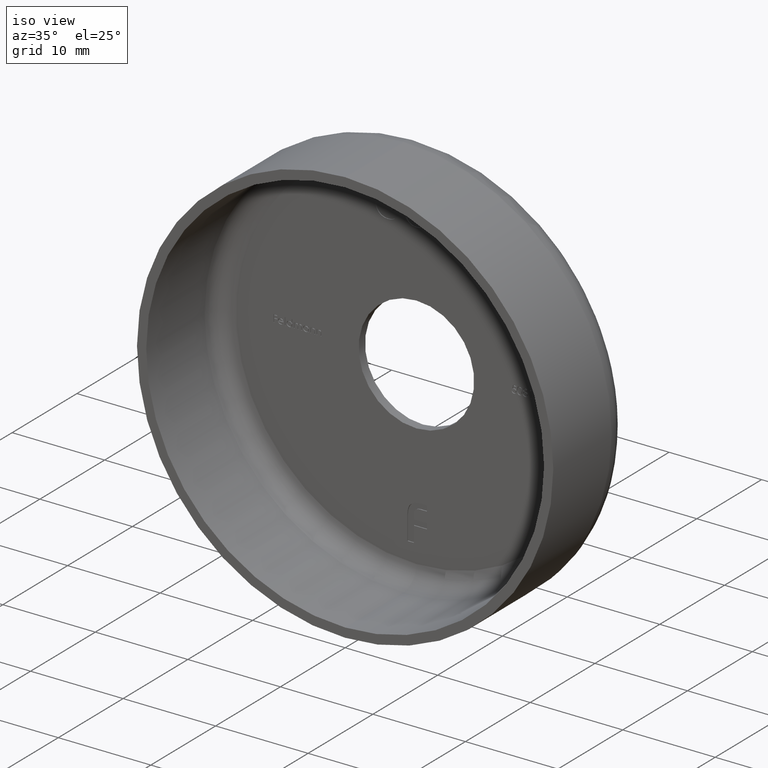
[diagram: clean part render]
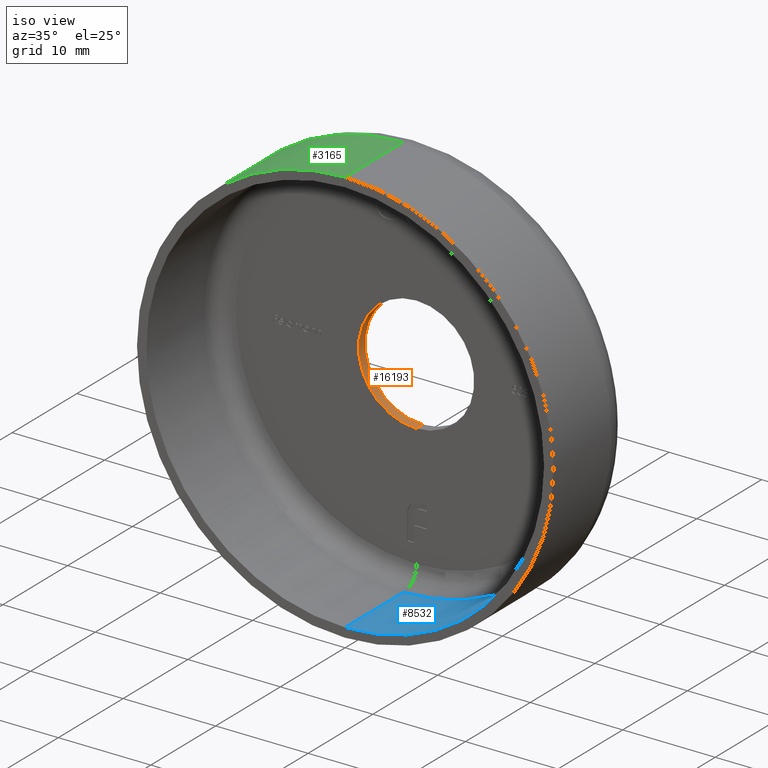
[diagram: same view with three faces highlighted in distinct colors, each labeled with its STEP entity id]
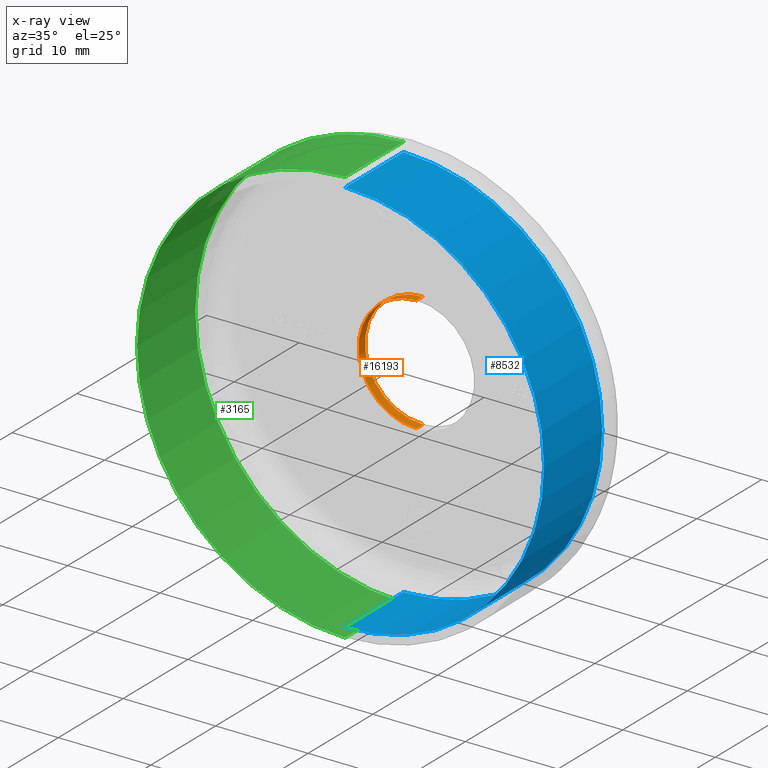
[diagram: x-ray of the same camera — body ghosted, the three highlighted faces saturated]
A machine part, iso view with three faces highlighted in distinct colors.
The next image is the same camera in x-ray (body ghosted, the three faces saturated) — at least one of them is partly hidden behind the body in this view.
Their STEP definitions:

[orange] entity #16193 — the highlighted cylindrical surface (partial cylindrical patch) has radius 6.25 mm, axis along (-0, -1, -0).
#90 = AXIS2_PLACEMENT_3D ( 'NONE', #16003, #14697, #128 ) ;
#128 = DIRECTION ( 'NONE',  ( 0.000000000000000000, 0.000000000000000000, -1.000000000000000000 ) ) ;
#165 = DIRECTION ( 'NONE',  ( -0.000000000000000000, -1.000000000000000000, -0.000000000000000000 ) ) ;
#815 = CARTESIAN_POINT ( 'NONE',  ( 7.654042494670959579E-16, 0.000000000000000000, 6.250000000000001776 ) ) ;
#1597 = ORIENTED_EDGE ( 'NONE', *, *, #9231, .F. ) ;
#1646 = VECTOR ( 'NONE', #165, 1000.000000000000000 ) ;
#1786 = CARTESIAN_POINT ( 'NONE',  ( 0.000000000000000000, 12.00000000000000000, -6.250000000000001776 ) ) ;
#2172 = CIRCLE ( 'NONE', #90, 6.250000000000001776 ) ;
#3110 = LINE ( 'NONE', #815, #10971 ) ;
#3196 = CARTESIAN_POINT ( 'NONE',  ( 7.654042494670959579E-16, 11.00000000000000000, 6.250000000000001776 ) ) ;
#3699 = CYLINDRICAL_SURFACE ( 'NONE', #14631, 6.250000000000001776 ) ;
#4363 = CARTESIAN_POINT ( 'NONE',  ( 7.654042494670959579E-16, 12.00000000000000000, 6.250000000000001776 ) ) ;
#4702 = ORIENTED_EDGE ( 'NONE', *, *, #16772, .F. ) ;
#4940 = CARTESIAN_POINT ( 'NONE',  ( 0.000000000000000000, 12.00000000000000000, 0.000000000000000000 ) ) ;
#5469 = VERTEX_POINT ( 'NONE', #3196 ) ;
#6570 = EDGE_LOOP ( 'NONE', ( #1597, #6889, #8325, #4702 ) ) ;
#6889 = ORIENTED_EDGE ( 'NONE', *, *, #14436, .T. ) ;
#7374 = DIRECTION ( 'NONE',  ( 0.000000000000000000, 0.000000000000000000, -1.000000000000000000 ) ) ;
#7626 = CARTESIAN_POINT ( 'NONE',  ( 0.000000000000000000, 11.00000000000000000, -6.250000000000001776 ) ) ;
#7643 = LINE ( 'NONE', #13428, #1646 ) ;
#8325 = ORIENTED_EDGE ( 'NONE', *, *, #9322, .T. ) ;
#8468 = DIRECTION ( 'NONE',  ( 0.000000000000000000, 0.000000000000000000, -1.000000000000000000 ) ) ;
#8749 = DIRECTION ( 'NONE',  ( -0.000000000000000000, -1.000000000000000000, -0.000000000000000000 ) ) ;
#8982 = VERTEX_POINT ( 'NONE', #4363 ) ;
#9231 = EDGE_CURVE ( 'NONE', #8982, #11508, #16842, .T. ) ;
#9322 = EDGE_CURVE ( 'NONE', #5469, #11698, #2172, .T. ) ;
#10971 = VECTOR ( 'NONE', #12852, 1000.000000000000000 ) ;
#11508 = VERTEX_POINT ( 'NONE', #1786 ) ;
#11698 = VERTEX_POINT ( 'NONE', #7626 ) ;
#12852 = DIRECTION ( 'NONE',  ( -0.000000000000000000, -1.000000000000000000, -0.000000000000000000 ) ) ;
#13428 = CARTESIAN_POINT ( 'NONE',  ( 0.000000000000000000, 0.000000000000000000, -6.250000000000001776 ) ) ;
#14436 = EDGE_CURVE ( 'NONE', #8982, #5469, #3110, .T. ) ;
#14631 = AXIS2_PLACEMENT_3D ( 'NONE', #15180, #16376, #8468 ) ;
#14672 = FACE_OUTER_BOUND ( 'NONE', #6570, .T. ) ;
#14697 = DIRECTION ( 'NONE',  ( -0.000000000000000000, -1.000000000000000000, -0.000000000000000000 ) ) ;
#14935 = AXIS2_PLACEMENT_3D ( 'NONE', #4940, #8749, #7374 ) ;
#15180 = CARTESIAN_POINT ( 'NONE',  ( 0.000000000000000000, 0.000000000000000000, 0.000000000000000000 ) ) ;
#16003 = CARTESIAN_POINT ( 'NONE',  ( 0.000000000000000000, 11.00000000000000000, 0.000000000000000000 ) ) ;
#16193 = ADVANCED_FACE ( 'NONE', ( #14672 ), #3699, .F. ) ;
#16376 = DIRECTION ( 'NONE',  ( -0.000000000000000000, -1.000000000000000000, -0.000000000000000000 ) ) ;
#16772 = EDGE_CURVE ( 'NONE', #11508, #11698, #7643, .T. ) ;
#16842 = CIRCLE ( 'NONE', #14935, 6.250000000000001776 ) ;

[blue] entity #8532 — the highlighted cylindrical surface (partial cylindrical patch) has radius 21.5 mm, axis along (-0, -1, -0).
#1 = CARTESIAN_POINT ( 'NONE',  ( 0.000000000000000000, -1.224646799147353207E-16, 0.000000000000000000 ) ) ;
#476 = VERTEX_POINT ( 'NONE', #17009 ) ;
#1751 = CIRCLE ( 'NONE', #3639, 21.50000000000000355 ) ;
#2113 = VERTEX_POINT ( 'NONE', #15623 ) ;
#2189 = CYLINDRICAL_SURFACE ( 'NONE', #12966, 21.50000000000000355 ) ;
#2784 = ORIENTED_EDGE ( 'NONE', *, *, #11120, .T. ) ;
#2820 = CARTESIAN_POINT ( 'NONE',  ( 0.000000000000000000, -1.224646799147353207E-16, -21.50000000000000355 ) ) ;
#3639 = AXIS2_PLACEMENT_3D ( 'NONE', #16001, #16111, #5337 ) ;
#3930 = VERTEX_POINT ( 'NONE', #2820 ) ;
#4115 = DIRECTION ( 'NONE',  ( -0.000000000000000000, -1.000000000000000000, -0.000000000000000000 ) ) ;
#4499 = DIRECTION ( 'NONE',  ( 0.000000000000000000, 0.000000000000000000, -1.000000000000000000 ) ) ;
#4610 = VERTEX_POINT ( 'NONE', #8434 ) ;
#5243 = EDGE_LOOP ( 'NONE', ( #9937, #9426, #2784, #13165 ) ) ;
#5337 = DIRECTION ( 'NONE',  ( 0.000000000000000000, 0.000000000000000000, -1.000000000000000000 ) ) ;
#5580 = CARTESIAN_POINT ( 'NONE',  ( 0.000000000000000000, 0.000000000000000000, -21.50000000000000355 ) ) ;
#5691 = VECTOR ( 'NONE', #8100, 1000.000000000000000 ) ;
#5868 = AXIS2_PLACEMENT_3D ( 'NONE', #1, #4115, #8050 ) ;
#7119 = LINE ( 'NONE', #5580, #5691 ) ;
#7469 = VECTOR ( 'NONE', #9978, 1000.000000000000000 ) ;
#7685 = LINE ( 'NONE', #14212, #7469 ) ;
#7882 = EDGE_CURVE ( 'NONE', #3930, #476, #8814, .T. ) ;
#8050 = DIRECTION ( 'NONE',  ( 0.000000000000000000, 0.000000000000000000, -1.000000000000000000 ) ) ;
#8100 = DIRECTION ( 'NONE',  ( -0.000000000000000000, -1.000000000000000000, -0.000000000000000000 ) ) ;
#8434 = CARTESIAN_POINT ( 'NONE',  ( 0.000000000000000000, 9.000000000000001776, -21.50000000000000355 ) ) ;
#8532 = ADVANCED_FACE ( 'NONE', ( #14176 ), #2189, .F. ) ;
#8814 = CIRCLE ( 'NONE', #5868, 21.50000000000000355 ) ;
#9426 = ORIENTED_EDGE ( 'NONE', *, *, #11126, .F. ) ;
#9937 = ORIENTED_EDGE ( 'NONE', *, *, #14535, .F. ) ;
#9978 = DIRECTION ( 'NONE',  ( -0.000000000000000000, -1.000000000000000000, -0.000000000000000000 ) ) ;
#11092 = CARTESIAN_POINT ( 'NONE',  ( 0.000000000000000000, 0.000000000000000000, 0.000000000000000000 ) ) ;
#11120 = EDGE_CURVE ( 'NONE', #4610, #3930, #7119, .T. ) ;
#11126 = EDGE_CURVE ( 'NONE', #4610, #2113, #1751, .T. ) ;
#12437 = DIRECTION ( 'NONE',  ( -0.000000000000000000, -1.000000000000000000, -0.000000000000000000 ) ) ;
#12966 = AXIS2_PLACEMENT_3D ( 'NONE', #11092, #12437, #4499 ) ;
#13165 = ORIENTED_EDGE ( 'NONE', *, *, #7882, .T. ) ;
#14176 = FACE_OUTER_BOUND ( 'NONE', #5243, .T. ) ;
#14212 = CARTESIAN_POINT ( 'NONE',  ( 2.632990618166810024E-15, 0.000000000000000000, 21.50000000000000355 ) ) ;
#14535 = EDGE_CURVE ( 'NONE', #2113, #476, #7685, .T. ) ;
#15623 = CARTESIAN_POINT ( 'NONE',  ( 2.632990618166810024E-15, 9.000000000000001776, 21.50000000000000355 ) ) ;
#16001 = CARTESIAN_POINT ( 'NONE',  ( 0.000000000000000000, 9.000000000000001776, 0.000000000000000000 ) ) ;
#16111 = DIRECTION ( 'NONE',  ( -0.000000000000000000, -1.000000000000000000, -0.000000000000000000 ) ) ;
#17009 = CARTESIAN_POINT ( 'NONE',  ( 2.632990618166810024E-15, -1.224646799147353207E-16, 21.50000000000000355 ) ) ;

[green] entity #3165 — the highlighted cylindrical surface (partial cylindrical patch) has radius 22.5 mm, axis along (-0, -1, -0).
#600 = DIRECTION ( 'NONE',  ( -0.000000000000000000, -1.000000000000000000, -0.000000000000000000 ) ) ;
#1296 = CARTESIAN_POINT ( 'NONE',  ( 2.755455298081545172E-15, 0.000000000000000000, 22.50000000000000355 ) ) ;
#1670 = VERTEX_POINT ( 'NONE', #10815 ) ;
#1828 = DIRECTION ( 'NONE',  ( 0.000000000000000000, 0.000000000000000000, -1.000000000000000000 ) ) ;
#3165 = ADVANCED_FACE ( 'NONE', ( #15308 ), #9497, .T. ) ;
#3205 = CARTESIAN_POINT ( 'NONE',  ( 0.000000000000000000, 0.000000000000000000, -22.50000000000000355 ) ) ;
#3208 = CIRCLE ( 'NONE', #11960, 22.50000000000000000 ) ;
#3771 = AXIS2_PLACEMENT_3D ( 'NONE', #15059, #11018, #11242 ) ;
#3813 = CARTESIAN_POINT ( 'NONE',  ( 0.000000000000000000, 0.000000000000000000, 0.000000000000000000 ) ) ;
#3902 = CARTESIAN_POINT ( 'NONE',  ( 0.000000000000000000, 0.000000000000000000, -22.50000000000000711 ) ) ;
#4410 = AXIS2_PLACEMENT_3D ( 'NONE', #3813, #7978, #9064 ) ;
#4879 = VERTEX_POINT ( 'NONE', #3902 ) ;
#6213 = ORIENTED_EDGE ( 'NONE', *, *, #8207, .F. ) ;
#6302 = EDGE_LOOP ( 'NONE', ( #16993, #9116, #7845, #6213 ) ) ;
#7025 = EDGE_CURVE ( 'NONE', #12911, #1670, #7799, .T. ) ;
#7799 = LINE ( 'NONE', #1296, #8829 ) ;
#7845 = ORIENTED_EDGE ( 'NONE', *, *, #9139, .T. ) ;
#7978 = DIRECTION ( 'NONE',  ( -0.000000000000000000, -1.000000000000000000, -0.000000000000000000 ) ) ;
#7990 = CIRCLE ( 'NONE', #4410, 22.50000000000000711 ) ;
#8207 = EDGE_CURVE ( 'NONE', #1670, #4879, #7990, .T. ) ;
#8829 = VECTOR ( 'NONE', #12053, 1000.000000000000000 ) ;
#8908 = CARTESIAN_POINT ( 'NONE',  ( 2.755455298081544778E-15, 9.000000000000001776, 22.50000000000000000 ) ) ;
#9064 = DIRECTION ( 'NONE',  ( 0.000000000000000000, 0.000000000000000000, -1.000000000000000000 ) ) ;
#9087 = EDGE_CURVE ( 'NONE', #12911, #16257, #3208, .T. ) ;
#9116 = ORIENTED_EDGE ( 'NONE', *, *, #9087, .T. ) ;
#9139 = EDGE_CURVE ( 'NONE', #16257, #4879, #10431, .T. ) ;
#9390 = VECTOR ( 'NONE', #15227, 1000.000000000000000 ) ;
#9497 = CYLINDRICAL_SURFACE ( 'NONE', #3771, 22.50000000000000355 ) ;
#10301 = CARTESIAN_POINT ( 'NONE',  ( 0.000000000000000000, 9.000000000000001776, -22.50000000000000000 ) ) ;
#10431 = LINE ( 'NONE', #3205, #9390 ) ;
#10815 = CARTESIAN_POINT ( 'NONE',  ( 2.755455298081545961E-15, 0.000000000000000000, 22.50000000000000711 ) ) ;
#11018 = DIRECTION ( 'NONE',  ( -0.000000000000000000, -1.000000000000000000, -0.000000000000000000 ) ) ;
#11242 = DIRECTION ( 'NONE',  ( 0.000000000000000000, 0.000000000000000000, -1.000000000000000000 ) ) ;
#11960 = AXIS2_PLACEMENT_3D ( 'NONE', #12476, #600, #1828 ) ;
#12053 = DIRECTION ( 'NONE',  ( -0.000000000000000000, -1.000000000000000000, -0.000000000000000000 ) ) ;
#12476 = CARTESIAN_POINT ( 'NONE',  ( 0.000000000000000000, 9.000000000000001776, 0.000000000000000000 ) ) ;
#12911 = VERTEX_POINT ( 'NONE', #8908 ) ;
#15059 = CARTESIAN_POINT ( 'NONE',  ( 0.000000000000000000, 0.000000000000000000, 0.000000000000000000 ) ) ;
#15227 = DIRECTION ( 'NONE',  ( -0.000000000000000000, -1.000000000000000000, -0.000000000000000000 ) ) ;
#15308 = FACE_OUTER_BOUND ( 'NONE', #6302, .T. ) ;
#16257 = VERTEX_POINT ( 'NONE', #10301 ) ;
#16993 = ORIENTED_EDGE ( 'NONE', *, *, #7025, .F. ) ;